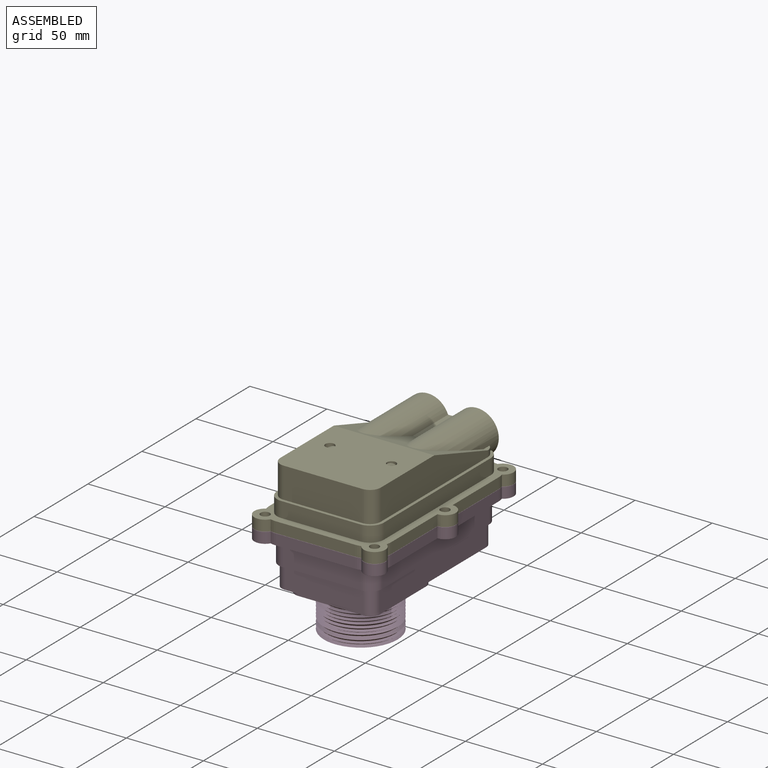
[diagram: assembled view]
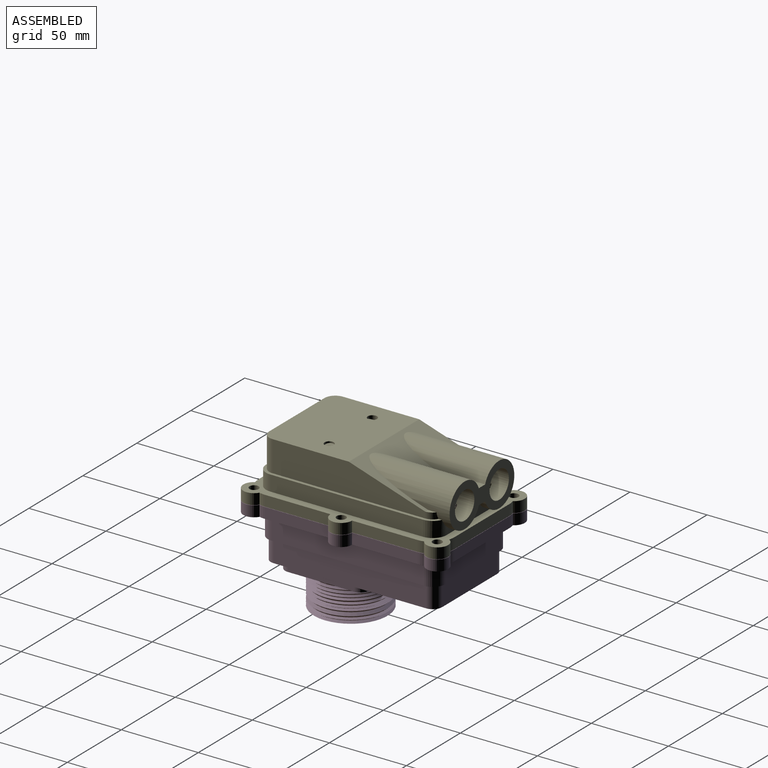
[diagram: assembled view, second angle]
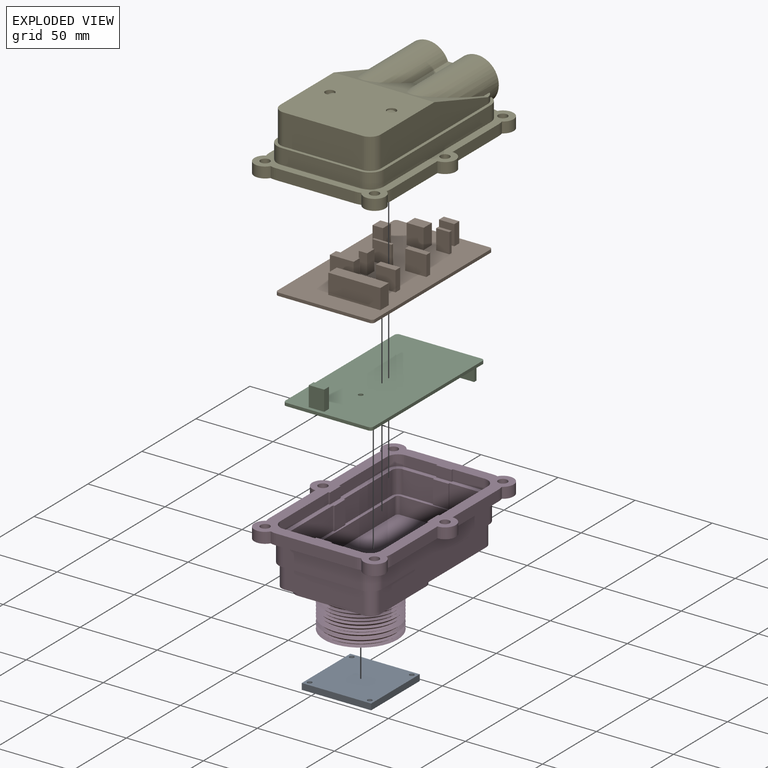
[diagram: exploded view]
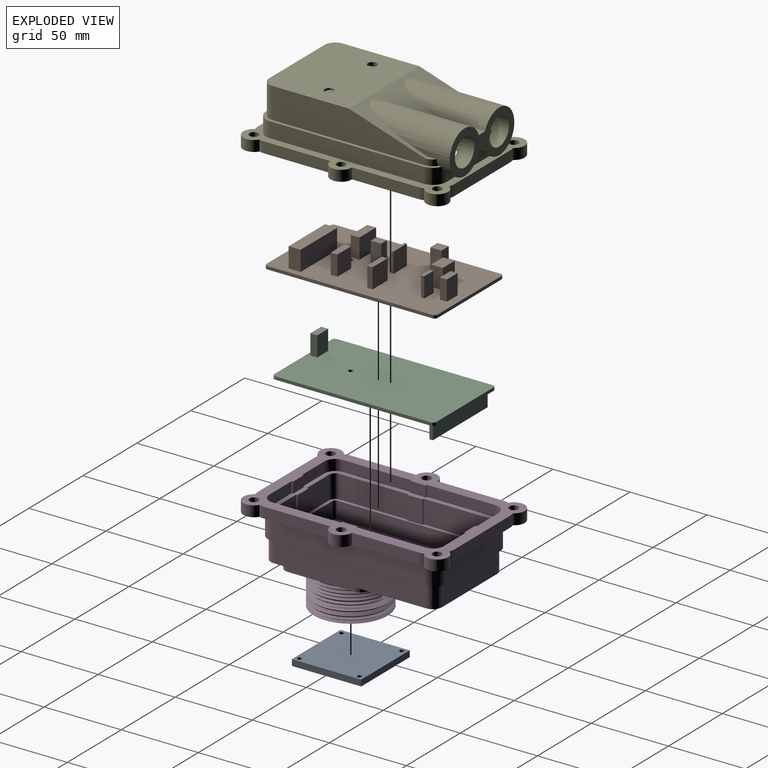
[diagram: exploded view, second angle]
ASSEMBLY  parts=5 mates=4
PART A: 12 faces, bbox 45x45x9.4 mm
  f0: plane 45x4mm, normal (0,1,0), area 180mm2, adj f1,f3,f4,f7
  f1: plane 45x4mm, normal (-1,0,0), area 180mm2, adj f0,f2,f4,f7
  f2: plane 45x4mm, normal (0,-1,0), area 180mm2, adj f1,f3,f4,f7
  f3: plane 45x4mm, normal (1,0,0), area 180mm2, adj f0,f2,f4,f7
  f4: plane 45x45mm, normal (0,0,1), area 1141.4mm2, adj f0,f1,f2,f3,f5,f8,f9,f10
  f5: cone r=14.5mm half-angle=45deg, axis (0,0,1), area 275.5mm2, adj f4,f6
  f6: revolved ~29x29mm, area 811.8mm2, adj f5
  f7: plane 45x45mm, normal (0,0,-1), area 1996.7mm2, adj f0,f1,f2,f3,f8,f9,f10,f11
  f8: cylinder r=1.5mm len=4mm, axis (0,0,1), area 37.7mm2, adj f4,f7
  f9: cylinder r=1.5mm len=4mm, axis (0,0,1), area 37.7mm2, adj f4,f7
  f10: cylinder r=1.5mm len=4mm, axis (0,0,1), area 37.7mm2, adj f4,f7
  f11: cylinder r=1.5mm len=4mm, axis (0,0,1), area 37.7mm2, adj f4,f7
PART B: 61 faces, bbox 63.2x111.1x15 mm
  f0: plane 111.1x63.2mm, normal (0,0,1), area 6302.1mm2, adj f1,f2,f3,f4,f5,f7,f8,f9
  f1: plane 59.2x2mm, normal (0,1,0), area 118.4mm2, adj f0,f6,f7,f10
  f2: plane 107.1x2mm, normal (-1,0,0), area 214.2mm2, adj f0,f6,f7,f8
  f3: plane 59.2x2mm, normal (0,-1,0), area 118.4mm2, adj f0,f6,f8,f9
  f4: cylinder r=1.5mm len=3mm, axis (0,0,-1), area 18.8mm2, adj f0,f6
  f5: plane 107.1x2mm, normal (1,0,0), area 214.2mm2, adj f0,f6,f9,f10
  f6: plane 111.1x63.2mm, normal (0,0,-1), area 7011mm2, adj f1,f2,f3,f4,f5,f7,f8,f9
  f7: cylinder r=2mm len=2mm, axis (0,0,1), area 6.3mm2, adj f0,f1,f2,f6
  f8: cylinder r=2mm len=2mm, axis (0,0,-1), area 6.3mm2, adj f0,f2,f3,f6
  f9: cylinder r=2mm len=2mm, axis (0,0,1), area 6.3mm2, adj f0,f3,f5,f6
  f10: cylinder r=2mm len=2mm, axis (0,0,-1), area 6.3mm2, adj f0,f1,f5,f6
  f11: plane 13x10mm, normal (0,1,0), area 130mm2, adj f0,f12,f14,f15
  f12: plane 13x4.5mm, normal (-1,0,0), area 58.5mm2, adj f0,f11,f13,f15
  f13: plane 13x10mm, normal (0,-1,0), area 130mm2, adj f0,f12,f14,f15
  f14: plane 13x4.5mm, normal (1,0,0), area 58.5mm2, adj f0,f11,f13,f15
  f15: plane 10x4.5mm, normal (0,0,1), area 45mm2, adj f11,f12,f13,f14
  f16: plane 13x8.58mm, normal (0,-1,0), area 111.6mm2, adj f0,f17,f19,f20
  f17: plane 13x2.16mm, normal (1,0,0), area 28.1mm2, adj f0,f16,f18,f20
  f18: plane 13x8.58mm, normal (0,1,0), area 111.6mm2, adj f0,f17,f19,f20
  f19: plane 13x2.16mm, normal (-1,0,0), area 28.1mm2, adj f0,f16,f18,f20
  f20: plane 8.58x2.16mm, normal (0,0,1), area 18.6mm2, adj f16,f17,f18,f19
  f21: plane 13x11.08mm, normal (0,-1,0), area 144.1mm2, adj f0,f22,f24,f25
  f22: plane 13x7.57mm, normal (1,0,0), area 98.4mm2, adj f0,f21,f23,f25
  f23: plane 13x11.08mm, normal (0,1,0), area 144.1mm2, adj f0,f22,f24,f25
  f24: plane 13x7.57mm, normal (-1,0,0), area 98.4mm2, adj f0,f21,f23,f25
  f25: plane 11.08x7.57mm, normal (0,0,1), area 83.9mm2, adj f21,f22,f23,f24
  f26: plane 13x6.76mm, normal (0,-1,0), area 87.9mm2, adj f0,f27,f29,f30
  f27: plane 13x7.3mm, normal (1,0,0), area 94.9mm2, adj f0,f26,f28,f30
  f28: plane 13x6.76mm, normal (0,1,0), area 87.9mm2, adj f0,f27,f29,f30
  f29: plane 13x7.3mm, normal (-1,0,0), area 94.9mm2, adj f0,f26,f28,f30
  f30: plane 7.3x6.76mm, normal (0,0,1), area 49.3mm2, adj f26,f27,f28,f29
  f31: plane 13.79x13mm, normal (0,-1,0), area 179.2mm2, adj f0,f32,f34,f35
  f32: plane 13x3.51mm, normal (1,0,0), area 45.7mm2, adj f0,f31,f33,f35
  f33: plane 13.79x13mm, normal (0,1,0), area 179.2mm2, adj f0,f32,f34,f35
  f34: plane 13x3.51mm, normal (-1,0,0), area 45.7mm2, adj f0,f31,f33,f35
  f35: plane 13.79x3.51mm, normal (0,0,1), area 48.4mm2, adj f31,f32,f33,f34
  f36: plane 13x12.43mm, normal (0,-1,0), area 161.6mm2, adj f0,f37,f39,f40
  f37: plane 13x1.62mm, normal (1,0,0), area 21.1mm2, adj f0,f36,f38,f40
  f38: plane 13x12.43mm, normal (0,1,0), area 161.6mm2, adj f0,f37,f39,f40
  f39: plane 13x1.62mm, normal (-1,0,0), area 21.1mm2, adj f0,f36,f38,f40
  f40: plane 12.43x1.62mm, normal (0,0,1), area 20.2mm2, adj f36,f37,f38,f39
  f41: plane 13x5.41mm, normal (0,-1,0), area 70.3mm2, adj f0,f42,f44,f45
  f42: plane 13x6.76mm, normal (1,0,0), area 87.9mm2, adj f0,f41,f43,f45
  f43: plane 13x5.41mm, normal (0,1,0), area 70.3mm2, adj f0,f42,f44,f45
  f44: plane 13x6.76mm, normal (-1,0,0), area 87.9mm2, adj f0,f41,f43,f45
  f45: plane 6.76x5.41mm, normal (0,0,1), area 36.5mm2, adj f41,f42,f43,f44
  f46: plane 13x12.64mm, normal (0,-1,0), area 164.3mm2, adj f0,f47,f49,f50
  f47: plane 13x4.33mm, normal (1,0,0), area 56.2mm2, adj f0,f46,f48,f50
  f48: plane 13x12.64mm, normal (0,1,0), area 164.3mm2, adj f0,f47,f49,f50
  f49: plane 13x4.33mm, normal (-1,0,0), area 56.2mm2, adj f0,f46,f48,f50
  f50: plane 12.64x4.33mm, normal (0,0,1), area 54.7mm2, adj f46,f47,f48,f49
  f51: plane 15.41x13mm, normal (0,-1,0), area 200.3mm2, adj f0,f52,f54,f55
  f52: plane 13x5.68mm, normal (1,0,0), area 73.8mm2, adj f0,f51,f53,f55
  f53: plane 15.41x13mm, normal (0,1,0), area 200.3mm2, adj f0,f52,f54,f55
  f54: plane 13x5.68mm, normal (-1,0,0), area 73.8mm2, adj f0,f51,f53,f55
  f55: plane 15.41x5.68mm, normal (0,0,1), area 87.5mm2, adj f51,f52,f53,f54
  f56: plane 33.79x13mm, normal (0,-1,0), area 439.3mm2, adj f0,f57,f59,f60
  f57: plane 13x7.84mm, normal (1,0,0), area 101.9mm2, adj f0,f56,f58,f60
  f58: plane 33.79x13mm, normal (0,1,0), area 439.3mm2, adj f0,f57,f59,f60
  f59: plane 13x7.84mm, normal (-1,0,0), area 101.9mm2, adj f0,f56,f58,f60
  f60: plane 33.79x7.84mm, normal (0,0,1), area 264.9mm2, adj f56,f57,f58,f59
PART C: 26 faces, bbox 57.2x105.1x25 mm
  f0: plane 105.1x57.2mm, normal (0,0,1), area 5837.1mm2, adj f1,f2,f3,f5,f7,f8,f9,f10
  f1: plane 53.2x2mm, normal (0,-1,0), area 106.4mm2, adj f0,f6,f7,f10
  f2: plane 101.1x2mm, normal (1,0,0), area 202.2mm2, adj f0,f6,f7,f8
  f3: plane 53.2x2mm, normal (0,1,0), area 106.4mm2, adj f0,f6,f8,f9
  f4: cylinder r=1.5mm len=12mm, axis (0,0,-1), area 113.1mm2, adj f6,f20
  f5: plane 101.1x2mm, normal (-1,0,0), area 202.2mm2, adj f0,f6,f9,f10
  f6: plane 105.1x57.2mm, normal (0,0,-1), area 5956.2mm2, adj f1,f2,f3,f4,f5,f7,f8,f9
  f7: cylinder r=2mm len=2mm, axis (0,0,1), area 6.3mm2, adj f0,f1,f2,f6
  f8: cylinder r=2mm len=2mm, axis (0,0,-1), area 6.3mm2, adj f0,f2,f3,f6
  f9: cylinder r=2mm len=2mm, axis (0,0,1), area 6.3mm2, adj f0,f3,f5,f6
  f10: cylinder r=2mm len=2mm, axis (0,0,-1), area 6.3mm2, adj f0,f1,f5,f6
  f11: plane 50.8x10mm, normal (0,1,0), area 508mm2, adj f0,f12,f14,f15
  f12: plane 10x2.26mm, normal (-1,0,0), area 22.6mm2, adj f0,f11,f13,f15
  f13: plane 50.8x10mm, normal (0,-1,0), area 508mm2, adj f0,f12,f14,f15
  f14: plane 10x2.26mm, normal (1,0,0), area 22.6mm2, adj f0,f11,f13,f15
  f15: plane 50.8x2.26mm, normal (0,0,1), area 114.9mm2, adj f11,f12,f13,f14
  f16: plane 10x7.5mm, normal (0,1,0), area 75mm2, adj f0,f17,f19,f20
  f17: plane 10x7.5mm, normal (-1,0,0), area 75mm2, adj f0,f16,f18,f20
  f18: plane 10x7.5mm, normal (0,-1,0), area 75mm2, adj f0,f17,f19,f20
  f19: plane 10x7.5mm, normal (1,0,0), area 75mm2, adj f0,f16,f18,f20
  f20: plane 7.5x7.5mm, normal (0,0,1), area 49.2mm2, adj f4,f16,f17,f18,f19
  f21: plane 13x10mm, normal (0,-1,0), area 130mm2, adj f6,f22,f24,f25
  f22: plane 13x4.5mm, normal (-1,0,0), area 58.5mm2, adj f6,f21,f23,f25
  f23: plane 13x10mm, normal (0,1,0), area 130mm2, adj f6,f22,f24,f25
  f24: plane 13x4.5mm, normal (1,0,0), area 58.5mm2, adj f6,f21,f23,f25
  f25: plane 10x4.5mm, normal (0,0,-1), area 45mm2, adj f21,f22,f23,f24
PART D: 173 faces, bbox 93.2x132.9x65 mm
  f0: plane 16.5x4mm, normal (-1,0,0), area 66mm2, adj f2,f23,f25,f146
  f1: plane 16.5x4mm, normal (1,0,0), area 66mm2, adj f2,f23,f27,f143
  f2: plane 47x47mm, normal (0,0,1), area 1073.7mm2, adj f0,f1,f3,f4,f24,f25,f26,f27
  f3: plane 16.5x4mm, normal (0,-1,0), area 66mm2, adj f2,f23,f25,f140
  f4: plane 16.5x4mm, normal (0,1,0), area 66mm2, adj f2,f23,f31,f138
  f5: plane 111.1x63.2mm, normal (0,0,-1), area 3996.5mm2, adj f6,f7,f8,f9,f10,f11,f12,f13
  f6: plane 99.1x14mm, normal (1,0,0), area 1387.4mm2, adj f5,f7,f13,f65
  f7: cylinder r=6mm len=14mm, axis (0,0,-1), area 131.9mm2, adj f5,f6,f8,f65
  f8: plane 51.2x14mm, normal (0,1,0), area 716.8mm2, adj f5,f7,f9,f65
  f9: cylinder r=6mm len=14mm, axis (0,0,-1), area 131.9mm2, adj f5,f8,f10,f65
  f10: plane 99.1x14mm, normal (-1,0,0), area 1387.4mm2, adj f5,f9,f11,f65
  f11: cylinder r=6mm len=14mm, axis (0,0,-1), area 131.9mm2, adj f5,f10,f12,f65
  f12: plane 51.2x14mm, normal (0,-1,0), area 716.8mm2, adj f5,f11,f13,f65
  f13: cylinder r=6mm len=14mm, axis (0,0,-1), area 131.9mm2, adj f5,f6,f12,f65
  f14: plane 107.1x59.2mm, normal (0,0,1), area 598.9mm2, adj f15,f16,f17,f18,f19,f20,f21,f22
  f15: plane 99.1x11mm, normal (-1,0,0), area 1090.1mm2, adj f14,f16,f22,f23
  f16: cylinder r=2mm len=11mm, axis (0,0,1), area 34.6mm2, adj f14,f15,f17,f23
  f17: plane 51.2x11mm, normal (0,-1,0), area 563.2mm2, adj f14,f16,f18,f23
  f18: cylinder r=2mm len=11mm, axis (0,0,1), area 34.6mm2, adj f14,f17,f19,f23
  f19: plane 99.1x11mm, normal (1,0,0), area 1090.1mm2, adj f14,f18,f20,f23
  f20: cylinder r=2mm len=11mm, axis (0,0,1), area 34.6mm2, adj f14,f19,f21,f23
  f21: plane 51.2x11mm, normal (0,1,0), area 563.2mm2, adj f14,f20,f22,f23
  f22: cylinder r=2mm len=11mm, axis (0,0,1), area 34.6mm2, adj f14,f15,f21,f23
  f23: plane 103.1x55.2mm, normal (0,0,1), area 3522.1mm2, adj f0,f1,f3,f4,f15,f16,f17,f18
  f24: plane 16.5x4mm, normal (-1,0,0), area 66mm2, adj f2,f23,f31,f147
  f25: cylinder r=2mm len=4mm, axis (0,0,1), area 12.6mm2, adj f0,f2,f3,f23
  f26: plane 16.5x4mm, normal (0,-1,0), area 66mm2, adj f2,f23,f27,f139
  f27: cylinder r=2mm len=4mm, axis (0,0,1), area 12.6mm2, adj f1,f2,f23,f26
  f28: plane 16.5x4mm, normal (1,0,0), area 66mm2, adj f2,f23,f29,f142
  f29: cylinder r=2mm len=4mm, axis (0,0,1), area 12.6mm2, adj f2,f23,f28,f30
  f30: plane 16.5x4mm, normal (0,1,0), area 66mm2, adj f2,f23,f29,f136
  f31: cylinder r=2mm len=4mm, axis (0,0,1), area 12.6mm2, adj f2,f4,f23,f24
  f32: plane 15x1mm, normal (-1,0,0), area 15mm2, adj f14,f33,f63,f64
  f33: plane 20.6x15mm, normal (0,1,0), area 309mm2, adj f14,f32,f34,f64
  f34: cylinder r=4mm len=15mm, axis (0,0,-1), area 94.2mm2, adj f14,f33,f35,f64
  f35: plane 44.55x15mm, normal (1,0,0), area 668.2mm2, adj f14,f34,f36,f64
  f36: plane 15x1mm, normal (0,-1,0), area 15mm2, adj f14,f35,f37,f64
  f37: plane 15x10mm, normal (1,0,0), area 150mm2, adj f14,f36,f38,f64
  f38: plane 15x1mm, normal (0,1,0), area 15mm2, adj f14,f37,f39,f64
  f39: plane 44.55x15mm, normal (1,0,0), area 668.3mm2, adj f14,f38,f40,f64
  f40: cylinder r=4mm len=15mm, axis (0,0,-1), area 94.2mm2, adj f14,f39,f41,f64
  f41: plane 20.6x15mm, normal (0,-1,0), area 309mm2, adj f14,f40,f42,f64
  f42: plane 15x1mm, normal (-1,0,0), area 15mm2, adj f14,f41,f43,f64
  f43: plane 15x10mm, normal (0,-1,0), area 150mm2, adj f14,f42,f44,f64
  f44: plane 15x1mm, normal (1,0,0), area 15mm2, adj f14,f43,f45,f64
  f45: plane 20.6x15mm, normal (0,-1,0), area 309mm2, adj f14,f44,f46,f64
  f46: cylinder r=4mm len=15mm, axis (0,0,-1), area 94.2mm2, adj f14,f45,f47,f64
  f47: plane 44.55x15mm, normal (-1,0,0), area 668.3mm2, adj f14,f46,f48,f64
  f48: plane 15x1mm, normal (0,1,0), area 15mm2, adj f14,f47,f49,f64
  f49: plane 15x10mm, normal (-1,0,0), area 150mm2, adj f14,f48,f50,f64
  f50: plane 15x1mm, normal (0,-1,0), area 15mm2, adj f14,f49,f51,f64
  f51: plane 44.55x15mm, normal (-1,0,0), area 668.2mm2, adj f14,f50,f52,f64
  f52: cylinder r=4mm len=15mm, axis (0,0,-1), area 94.2mm2, adj f14,f51,f53,f64
  f53: plane 20.6x15mm, normal (0,1,0), area 309mm2, adj f14,f52,f54,f64
  f54: plane 15x1mm, normal (1,0,0), area 15mm2, adj f14,f53,f63,f64
  f55: plane 99.1x15mm, normal (-1,0,0), area 1486.5mm2, adj f56,f62,f65,f66
  f56: cylinder r=8mm len=15mm, axis (0,0,-1), area 188.5mm2, adj f55,f57,f65,f66
  f57: plane 51.2x15mm, normal (0,-1,0), area 768mm2, adj f56,f58,f65,f66
  f58: cylinder r=8mm len=15mm, axis (0,0,-1), area 188.5mm2, adj f57,f59,f65,f66
  f59: plane 99.1x15mm, normal (1,0,0), area 1486.5mm2, adj f58,f60,f65,f66
  f60: cylinder r=8mm len=15mm, axis (0,0,-1), area 188.5mm2, adj f59,f61,f65,f66
  f61: plane 51.2x15mm, normal (0,1,0), area 768mm2, adj f60,f62,f65,f66
  f62: cylinder r=8mm len=15mm, axis (0,0,-1), area 188.5mm2, adj f55,f61,f65,f66
  f63: plane 15x10mm, normal (0,1,0), area 150mm2, adj f14,f32,f54,f64
  f64: plane 113.1x65.2mm, normal (0,0,1), area 1005.5mm2, adj f32,f33,f34,f35,f36,f37,f38,f39
  f65: plane 115.1x67.2mm, normal (0,0,-1), area 689.2mm2, adj f6,f7,f8,f9,f10,f11,f12,f13
  f66: plane 132.9x93.2mm, normal (0,0,-1), area 2543.3mm2, adj f55,f56,f57,f58,f59,f60,f61,f62
  f67: cylinder r=7mm len=13.03mm, axis (0,0,-1), area 178.7mm2, adj f66,f68,f116,f117
  f68: cylinder r=14mm len=7mm, axis (0,0,-1), area 27.4mm2, adj f66,f67,f69,f117
  f69: plane 51.2x7mm, normal (0,1,0), area 358.4mm2, adj f66,f68,f70,f117
  f70: cylinder r=14mm len=7mm, axis (0,0,-1), area 27.4mm2, adj f66,f69,f71,f117
  f71: cylinder r=7mm len=13.03mm, axis (0,0,-1), area 178.7mm2, adj f66,f70,f72,f117
  f72: cylinder r=14mm len=7mm, axis (0,0,-1), area 27.4mm2, adj f66,f71,f73,f117
  f73: plane 42.55x7mm, normal (-1,0,0), area 297.9mm2, adj f66,f72,f74,f117
  f74: cylinder r=7mm len=14mm, axis (0,0,-1), area 153.9mm2, adj f66,f73,f75,f117
  f75: plane 42.55x7mm, normal (-1,0,0), area 297.9mm2, adj f66,f74,f76,f117
  f76: cylinder r=14mm len=7mm, axis (0,0,-1), area 27.4mm2, adj f66,f75,f77,f117
  f77: cylinder r=7mm len=13.03mm, axis (0,0,-1), area 178.7mm2, adj f66,f76,f78,f117
  f78: cylinder r=14mm len=7mm, axis (0,0,-1), area 27.4mm2, adj f66,f77,f79,f117
  f79: plane 51.2x7mm, normal (0,-1,0), area 358.4mm2, adj f66,f78,f80,f117
  f80: cylinder r=14mm len=7mm, axis (0,0,-1), area 27.4mm2, adj f66,f79,f81,f117
  f81: cylinder r=7mm len=13.03mm, axis (0,0,-1), area 178.7mm2, adj f66,f80,f82,f117
  f82: cylinder r=14mm len=7mm, axis (0,0,-1), area 27.4mm2, adj f66,f81,f83,f117
  f83: plane 42.55x7mm, normal (1,0,0), area 297.9mm2, adj f66,f82,f84,f117
  f84: cylinder r=7mm len=14mm, axis (0,0,-1), area 153.9mm2, adj f66,f83,f85,f117
  f85: plane 42.55x7mm, normal (1,0,0), area 297.9mm2, adj f66,f84,f116,f117
  f86: plane 7x1mm, normal (-1,0,0), area 7mm2, adj f64,f87,f115,f117
  f87: plane 20.6x7mm, normal (0,1,0), area 144.2mm2, adj f64,f86,f88,f117
  f88: cylinder r=7mm len=7mm, axis (0,0,-1), area 77mm2, adj f64,f87,f89,f117
  f89: plane 44.55x7mm, normal (1,0,0), area 311.8mm2, adj f64,f88,f90,f117
  f90: plane 7x1mm, normal (0,-1,0), area 7mm2, adj f64,f89,f91,f117
  f91: plane 10x7mm, normal (1,0,0), area 70mm2, adj f64,f90,f92,f117
  f92: plane 7x1mm, normal (0,1,0), area 7mm2, adj f64,f91,f93,f117
  f93: plane 44.55x7mm, normal (1,0,0), area 311.9mm2, adj f64,f92,f94,f117
  f94: cylinder r=7mm len=7mm, axis (0,0,-1), area 77mm2, adj f64,f93,f95,f117
  f95: plane 20.6x7mm, normal (0,-1,0), area 144.2mm2, adj f64,f94,f96,f117
  f96: plane 7x1mm, normal (-1,0,0), area 7mm2, adj f64,f95,f97,f117
  f97: plane 10x7mm, normal (0,-1,0), area 70mm2, adj f64,f96,f98,f117
  f98: plane 7x1mm, normal (1,0,0), area 7mm2, adj f64,f97,f99,f117
  f99: plane 20.6x7mm, normal (0,-1,0), area 144.2mm2, adj f64,f98,f100,f117
  f100: cylinder r=7mm len=7mm, axis (0,0,-1), area 77mm2, adj f64,f99,f101,f117
  f101: plane 44.55x7mm, normal (-1,0,0), area 311.9mm2, adj f64,f100,f102,f117
  f102: plane 7x1mm, normal (0,1,0), area 7mm2, adj f64,f101,f103,f117
  f103: plane 10x7mm, normal (-1,0,0), area 70mm2, adj f64,f102,f104,f117
  f104: plane 7x1mm, normal (0,-1,0), area 7mm2, adj f64,f103,f105,f117
  f105: plane 44.55x7mm, normal (-1,0,0), area 311.8mm2, adj f64,f104,f106,f117
  f106: cylinder r=7mm len=7mm, axis (0,0,-1), area 77mm2, adj f64,f105,f107,f117
  f107: plane 20.6x7mm, normal (0,1,0), area 144.2mm2, adj f64,f106,f108,f117
  f108: plane 7x1mm, normal (1,0,0), area 7mm2, adj f64,f107,f115,f117
  f109: cylinder r=3mm len=7mm, axis (0,0,-1), area 131.9mm2, adj f66,f117
  f110: cylinder r=3mm len=7mm, axis (0,0,-1), area 131.9mm2, adj f66,f117
  f111: cylinder r=3mm len=7mm, axis (0,0,-1), area 131.9mm2, adj f66,f117
  f112: cylinder r=3mm len=7mm, axis (0,0,-1), area 131.9mm2, adj f66,f117
  f113: cylinder r=3mm len=7mm, axis (0,0,-1), area 131.9mm2, adj f66,f117
  f114: cylinder r=3mm len=7mm, axis (0,0,-1), area 131.9mm2, adj f66,f117
  f115: plane 10x7mm, normal (0,1,0), area 70mm2, adj f64,f86,f108,f117
  f116: cylinder r=14mm len=7mm, axis (0,0,-1), area 27.4mm2, adj f66,f67,f85,f117
  f117: plane 132.9x93.2mm, normal (0,0,1), area 2931.1mm2, adj f67,f68,f69,f70,f71,f72,f73,f74
  f118: plane 43x5mm, normal (-1,0,0), area 215mm2, adj f5,f119,f125,f127
  f119: cylinder r=6mm len=6mm, axis (0,0,1), area 47.1mm2, adj f5,f118,f120,f127
  f120: plane 43x5mm, normal (0,1,0), area 215mm2, adj f5,f119,f121,f127
  f121: cylinder r=6mm len=6mm, axis (0,0,1), area 47.1mm2, adj f5,f120,f122,f127
  f122: plane 43x5mm, normal (1,0,0), area 215mm2, adj f5,f121,f123,f127
  f123: cylinder r=6mm len=6mm, axis (0,0,1), area 47.1mm2, adj f5,f122,f124,f127
  f124: plane 43x5mm, normal (0,-1,0), area 215mm2, adj f5,f123,f125,f127
  f125: cylinder r=6mm len=6mm, axis (0,0,1), area 47.1mm2, adj f5,f118,f124,f127
  f126: cylinder r=18.4mm len=36.8mm, axis (0,0,1), area 2774.7mm2, adj f2,f148
  f127: plane 55x55mm, normal (0,0,-1), area 1205mm2, adj f118,f119,f120,f121,f122,f123,f124,f125
  f128: cylinder r=1.5mm len=4mm, axis (0,0,-1), area 37.7mm2, adj f2,f129
  f129: plane 3x3mm, normal (0,0,1), area 7.1mm2, adj f128
  f130: cylinder r=1.5mm len=4mm, axis (0,0,-1), area 37.7mm2, adj f2,f131
  f131: plane 3x3mm, normal (0,0,1), area 7.1mm2, adj f130
  f132: cylinder r=1.5mm len=4mm, axis (0,0,-1), area 37.7mm2, adj f2,f133
  f133: plane 3x3mm, normal (0,0,1), area 7.1mm2, adj f132
  f134: cylinder r=1.5mm len=4mm, axis (0,0,-1), area 37.7mm2, adj f2,f135
  f135: plane 3x3mm, normal (0,0,1), area 7.1mm2, adj f134
  f136: plane 4x1mm, normal (-1,0,0), area 4mm2, adj f2,f23,f30,f137
  f137: plane 10x4mm, normal (0,1,0), area 40mm2, adj f2,f23,f136,f138
  f138: plane 4x1mm, normal (1,0,0), area 4mm2, adj f2,f4,f23,f137
  f139: plane 4x1mm, normal (-1,0,0), area 4mm2, adj f2,f23,f26,f141
  f140: plane 4x1mm, normal (1,0,0), area 4mm2, adj f2,f3,f23,f141
  f141: plane 10x4mm, normal (0,-1,0), area 40mm2, adj f2,f23,f139,f140
  f142: plane 4x1mm, normal (0,-1,0), area 4mm2, adj f2,f23,f28,f144
  f143: plane 4x1mm, normal (0,1,0), area 4mm2, adj f1,f2,f23,f144
  f144: plane 10x4mm, normal (1,0,0), area 40mm2, adj f2,f23,f142,f143
  f145: plane 10x4mm, normal (-1,0,0), area 40mm2, adj f2,f23,f146,f147
  f146: plane 4x1mm, normal (0,1,0), area 4mm2, adj f0,f2,f23,f145
  f147: plane 4x1mm, normal (0,-1,0), area 4mm2, adj f2,f23,f24,f145
  f148: plane 36.8x36.8mm, normal (0,0,1), area 1063.6mm2, adj f126
  f149: cone r=22.4mm half-angle=55.7deg, axis (0,0,-1), area 6.5mm2, adj f127,f150
  f150: cone r=23.9mm half-angle=50.8deg, axis (0,0,1), area 281.5mm2, adj f149,f151
  f151: cone r=22.4mm half-angle=59.1deg, axis (0,0,-1), area 254.3mm2, adj f150,f152
  f152: cone r=23.9mm half-angle=50.9deg, axis (0,0,1), area 281.1mm2, adj f151,f153
  f153: cone r=22.4mm half-angle=59.1deg, axis (0,0,-1), area 254.3mm2, adj f152,f154
  f154: cone r=23.9mm half-angle=52.4deg, axis (0,0,1), area 275.3mm2, adj f153,f155
  f155: cone r=22.4mm half-angle=54.8deg, axis (0,0,-1), area 267mm2, adj f154,f156
  f156: cone r=23.9mm half-angle=50.9deg, axis (0,0,1), area 281.1mm2, adj f155,f157
  f157: cone r=22.4mm half-angle=60.9deg, axis (0,0,-1), area 249.6mm2, adj f156,f158
  f158: cone r=23.9mm half-angle=52.4deg, axis (0,0,1), area 275.3mm2, adj f157,f159
  f159: cone r=22.4mm half-angle=60.9deg, axis (0,0,-1), area 249.6mm2, adj f158,f160
  f160: cone r=23.9mm half-angle=46.5deg, axis (0,0,1), area 300.9mm2, adj f159,f161
  f161: cone r=22.4mm half-angle=60.9deg, axis (0,0,-1), area 249.6mm2, adj f160,f162
  f162: cone r=23.9mm half-angle=49.7deg, axis (0,0,1), area 286.1mm2, adj f161,f163
  f163: cone r=22.4mm half-angle=60.9deg, axis (0,0,-1), area 249.6mm2, adj f162,f164
  f164: cone r=23.9mm half-angle=60deg, axis (0,0,1), area 251.8mm2, adj f163,f165
  f165: cone r=22.4mm half-angle=60.9deg, axis (0,0,-1), area 249.6mm2, adj f164,f166
  f166: cone r=23.9mm half-angle=48.2deg, axis (0,0,1), area 292.6mm2, adj f165,f167
  f167: cone r=22.4mm half-angle=41.8deg, axis (0,0,-1), area 327.5mm2, adj f166,f168
  f168: cone r=23.9mm half-angle=48.2deg, axis (0,0,1), area 292.6mm2, adj f167,f169
  f169: cone r=22.4mm half-angle=60.9deg, axis (0,0,-1), area 249.6mm2, adj f168,f170
  f170: cone r=23.9mm half-angle=57.1deg, axis (0,0,1), area 259.8mm2, adj f169,f171
  f171: cone r=22.4mm half-angle=49.8deg, axis (0,0,-1), area 285.5mm2, adj f170,f172
  f172: plane 47.8x47.8mm, normal (0,0,-1), area 1794.5mm2, adj f171
PART E: 96 faces, bbox 93.2x132.9x37 mm
  f0: plane 17.16x2mm, normal (0,0,-1), area 34.3mm2, adj f6,f8,f54,f87
  f1: plane 5.64x2mm, normal (0,0,-1), area 9.3mm2, adj f4,f8,f54,f87
  f2: plane 5.64x2mm, normal (0,0,-1), area 9.3mm2, adj f3,f6,f54,f87
  f3: cylinder r=4mm len=10mm, axis (0,0,-1), area 41.9mm2, adj f2,f5,f54,f87
  f4: cylinder r=4mm len=10mm, axis (0,0,-1), area 41.9mm2, adj f1,f5,f54,f87
  f5: plane 113.1x65.2mm, normal (0,0,-1), area 998.1mm2, adj f3,f4,f17,f18,f19,f20,f21,f22
  f6: cylinder r=9mm len=18mm, axis (0,-1,0), area 78.2mm2, adj f0,f2,f54,f87
  f7: cylinder r=9mm len=58.46mm, axis (0,-1,0), area 1777.3mm2, adj f10,f82,f86,f88,f89,f91,f94
  f8: cylinder r=9mm len=18mm, axis (0,-1,0), area 78.2mm2, adj f0,f1,f54,f87
  f9: cylinder r=9mm len=58.46mm, axis (0,-1,0), area 1777.3mm2, adj f10,f82,f86,f88,f90,f92,f95
  f10: plane 17.16x4mm, normal (0,0,-1), area 68.4mm2, adj f7,f9,f65,f84,f85,f88,f91,f92
  f11: plane 116.42x69.2mm, normal (0,0,1), area 585.1mm2, adj f13,f15,f57,f58,f59,f60,f61,f62
  f12: plane 5.48x2.64mm, normal (0,0,1), area 10.1mm2, adj f13,f74,f80
  f13: cylinder r=7mm len=6.1mm, axis (0,0,-1), area 26.9mm2, adj f11,f12,f71,f80
  f14: plane 5.92x0.09mm, normal (0,1,0), area 0.6mm2, adj f66,f79,f80,f81
  f15: cylinder r=7mm len=6.1mm, axis (0,0,-1), area 26.9mm2, adj f11,f72,f73,f81
  f16: plane 132.9x93.2mm, normal (0,0,1), area 2189.3mm2, adj f24,f25,f26,f27,f28,f29,f30,f31
  f17: cylinder r=7mm len=7mm, axis (0,0,-1), area 77mm2, adj f5,f18,f50,f51
  f18: plane 99.1x7mm, normal (1,0,0), area 693.7mm2, adj f5,f17,f19,f51
  f19: cylinder r=7mm len=7mm, axis (0,0,-1), area 77mm2, adj f5,f18,f20,f51
  f20: plane 51.2x7mm, normal (0,-1,0), area 358.4mm2, adj f5,f19,f21,f51
  f21: cylinder r=7mm len=7mm, axis (0,0,-1), area 77mm2, adj f5,f20,f22,f51
  f22: plane 99.1x7mm, normal (-1,0,0), area 693.7mm2, adj f5,f21,f23,f51
  f23: cylinder r=7mm len=7mm, axis (0,0,-1), area 77mm2, adj f5,f22,f50,f51
  f24: plane 42.55x7mm, normal (-1,0,0), area 297.8mm2, adj f16,f25,f49,f51
  f25: cylinder r=14mm len=7mm, axis (0,0,-1), area 27.4mm2, adj f16,f24,f26,f51
  f26: cylinder r=7mm len=13.03mm, axis (0,0,-1), area 178.7mm2, adj f16,f25,f27,f51
  f27: cylinder r=14mm len=7mm, axis (0,0,-1), area 27.4mm2, adj f16,f26,f28,f51
  f28: plane 51.2x7mm, normal (0,-1,0), area 358.4mm2, adj f16,f27,f29,f51
  f29: cylinder r=14mm len=7mm, axis (0,0,-1), area 27.4mm2, adj f16,f28,f30,f51
  f30: cylinder r=7mm len=13.03mm, axis (0,0,-1), area 178.7mm2, adj f16,f29,f31,f51
  f31: cylinder r=14mm len=7mm, axis (0,0,-1), area 27.4mm2, adj f16,f30,f32,f51
  f32: plane 42.55x7mm, normal (1,0,0), area 297.8mm2, adj f16,f31,f33,f51
  f33: cylinder r=7mm len=14mm, axis (0,0,-1), area 153.9mm2, adj f16,f32,f34,f51
  f34: plane 42.55x7mm, normal (1,0,0), area 297.9mm2, adj f16,f33,f35,f51
  f35: cylinder r=14mm len=7mm, axis (0,0,-1), area 27.4mm2, adj f16,f34,f36,f51
  f36: cylinder r=7mm len=13.03mm, axis (0,0,-1), area 178.7mm2, adj f16,f35,f37,f51
  f37: cylinder r=14mm len=7mm, axis (0,0,-1), area 27.4mm2, adj f16,f36,f38,f51
  f38: plane 51.2x7mm, normal (0,1,0), area 358.4mm2, adj f16,f37,f39,f51
  f39: cylinder r=14mm len=7mm, axis (0,0,-1), area 27.4mm2, adj f16,f38,f40,f51
  f40: cylinder r=7mm len=13.03mm, axis (0,0,-1), area 178.7mm2, adj f16,f39,f41,f51
  f41: cylinder r=14mm len=7mm, axis (0,0,-1), area 27.4mm2, adj f16,f40,f42,f51
  f42: plane 42.55x7mm, normal (-1,0,0), area 297.9mm2, adj f16,f41,f49,f51
  f43: cylinder r=3mm len=7mm, axis (0,0,-1), area 131.9mm2, adj f16,f51
  f44: cylinder r=3mm len=7mm, axis (0,0,-1), area 131.9mm2, adj f16,f51
  f45: cylinder r=3mm len=7mm, axis (0,0,-1), area 131.9mm2, adj f16,f51
  f46: cylinder r=3mm len=7mm, axis (0,0,-1), area 131.9mm2, adj f16,f51
  f47: cylinder r=3mm len=7mm, axis (0,0,-1), area 131.9mm2, adj f16,f51
  f48: cylinder r=3mm len=7mm, axis (0,0,-1), area 131.9mm2, adj f16,f51
  f49: cylinder r=7mm len=14mm, axis (0,0,-1), area 153.9mm2, adj f16,f24,f42,f51
  f50: plane 51.2x7mm, normal (0,1,0), area 358.4mm2, adj f5,f17,f23,f51
  f51: plane 132.9x93.2mm, normal (0,0,-1), area 2891.1mm2, adj f17,f18,f19,f20,f21,f22,f23,f24
  f52: cylinder r=4mm len=5.33mm, axis (0,0,-1), area 2.2mm2, adj f5,f65,f84,f91
  f53: plane 105.08x26mm, normal (-1,0,0), area 2261.9mm2, adj f5,f86,f87,f89,f91,f93,f94
  f54: plane 51.2x24.09mm, normal (0,1,0), area 939.5mm2, adj f0,f1,f2,f3,f4,f5,f6,f8
  f55: plane 105.08x26mm, normal (1,0,0), area 2261.9mm2, adj f5,f86,f87,f90,f92,f93,f95
  f56: cylinder r=4mm len=5.33mm, axis (0,0,-1), area 2.2mm2, adj f5,f65,f85,f92
  f57: plane 99.1x10mm, normal (-1,0,0), area 991mm2, adj f11,f16,f58,f64
  f58: cylinder r=9mm len=10mm, axis (0,0,-1), area 141.4mm2, adj f11,f16,f57,f59
  f59: plane 51.2x10mm, normal (0,-1,0), area 512mm2, adj f11,f16,f58,f60
  f60: cylinder r=9mm len=10mm, axis (0,0,-1), area 141.4mm2, adj f11,f16,f59,f61
  f61: plane 99.1x10mm, normal (1,0,0), area 991mm2, adj f11,f16,f60,f62
  f62: cylinder r=9mm len=10mm, axis (0,0,-1), area 131.1mm2, adj f11,f16,f61,f63,f81
  f63: plane 51.2x10mm, normal (0,1,0), area 195.4mm2, adj f16,f62,f64,f66,f80,f81
  f64: cylinder r=9mm len=10mm, axis (0,0,-1), area 131.1mm2, adj f11,f16,f57,f63,f80
  f65: plane 51.2x10mm, normal (0,-1,0), area 195.4mm2, adj f5,f10,f52,f56,f84,f85
  f66: plane 5.92x2mm, normal (0,0,1), area 11.8mm2, adj f14,f63,f80,f81
  f67: plane 65.2x56.55mm, normal (0,0,1), area 3609.5mm2, adj f68,f69,f70,f71,f72,f74,f75,f76
  f68: cylinder r=7mm len=20mm, axis (0,0,-1), area 219.9mm2, adj f11,f67,f69,f72
  f69: plane 51.2x20mm, normal (0,-1,0), area 1024mm2, adj f11,f67,f68,f70
  f70: cylinder r=7mm len=20mm, axis (0,0,-1), area 219.9mm2, adj f11,f67,f69,f71
  f71: plane 99.1x20mm, normal (-1,0,0), area 1585.6mm2, adj f11,f13,f67,f70,f74
  f72: plane 99.1x20mm, normal (1,0,0), area 1585.6mm2, adj f11,f15,f67,f68,f74
  f73: plane 5.48x2.64mm, normal (0,0,1), area 10.1mm2, adj f15,f74,f81
  f74: plane 65.2x49.55mm, normal (0,0.31,0.95), area 1102.5mm2, adj f12,f67,f71,f72,f73,f80,f81,f83
  f75: cylinder r=3mm len=6mm, axis (0,0,1), area 31.6mm2, adj f67,f78
  f76: cylinder r=3mm len=6mm, axis (0,0,1), area 31.6mm2, adj f67,f77
  f77: cylinder r=14mm len=6mm, axis (0,-1,0), area 29.7mm2, adj f76
  f78: cylinder r=14mm len=6mm, axis (0,-1,0), area 29.8mm2, adj f75
  f79: plane 7x5.85mm, normal (0,0,-1), area 40.9mm2, adj f14,f80,f81,f82
  f80: cylinder r=14mm len=60.84mm, axis (0,-1,0), area 2071.2mm2, adj f11,f12,f13,f14,f63,f64,f66,f74
  f81: cylinder r=14mm len=60.84mm, axis (0,-1,0), area 2071.2mm2, adj f11,f14,f15,f62,f63,f66,f73,f74
  f82: plane 60x28mm, normal (0,1,0), area 768.6mm2, adj f7,f9,f79,f80,f81,f83
  f83: plane 32.87x5.85mm, normal (0,0,1), area 192.2mm2, adj f74,f80,f81,f82
  f84: cylinder r=14mm len=23.08mm, axis (0,-1,0), area 0.7mm2, adj f10,f52,f65,f91
  f85: cylinder r=14mm len=23.08mm, axis (0,-1,0), area 0.7mm2, adj f10,f56,f65,f92
  f86: plane 59.2x48.95mm, normal (0,-0.31,-0.95), area 1672.7mm2, adj f7,f9,f53,f55,f88,f89,f90,f93
  f87: plane 59.2x26mm, normal (0,1,0), area 530.4mm2, adj f0,f1,f2,f3,f4,f5,f6,f8
  f88: plane 17.17x1.23mm, normal (0,-0.16,-0.99), area 21.2mm2, adj f7,f9,f10,f86
  f89: plane 6.19x1.23mm, normal (0,-0.16,-0.99), area 7.6mm2, adj f7,f53,f86,f94
  f90: plane 6.19x1.23mm, normal (0,-0.16,-0.99), area 7.6mm2, adj f9,f55,f86,f95
  f91: plane 26.64x10mm, normal (0,-1,0), area 155.3mm2, adj f5,f7,f10,f52,f53,f84,f94
  f92: plane 26.64x10mm, normal (0,-1,0), area 155.3mm2, adj f5,f9,f10,f55,f56,f85,f95
  f93: plane 59.2x50.92mm, normal (0,0,-1), area 3014.5mm2, adj f53,f55,f86,f87
  f94: plane 6.18x3.98mm, normal (0,0,-1), area 24.6mm2, adj f7,f53,f89,f91
  f95: plane 6.18x3.98mm, normal (0,0,-1), area 24.6mm2, adj f9,f55,f90,f92
PLACE A rot(axis=(0.71,-0.71,0),180deg) t=(-75.62,-89.02,63.72)mm
PLACE B rot(axis=(0,0,1),180deg) t=(-75.62,-67.47,74.87)mm
PLACE C rot(axis=(1,0,0),180deg) t=(-75.62,-67.47,61.79)mm
PLACE D rot(axis=(0,0,-1),180deg) t=(-75.62,-89.02,41.6)mm
PLACE E t=(-36.65,-116.69,81.74)mm
MATE cylindrical B.f4 <-> D.f149  axis (0,0,-1) through (-75.62,-89.02,75.87)mm
MATE cylindrical E.f30 <-> D.f71  axis (0,0,-1) through (-40.12,-126.91,85.24)mm
MATE cylindrical C.f4 <-> D.f149  axis (0,0,-1) through (-75.62,-89.02,49.79)mm
MATE cylindrical D.f128 <-> A.f11  axis (0,0,1) through (-56.12,-69.52,44.6)mm
